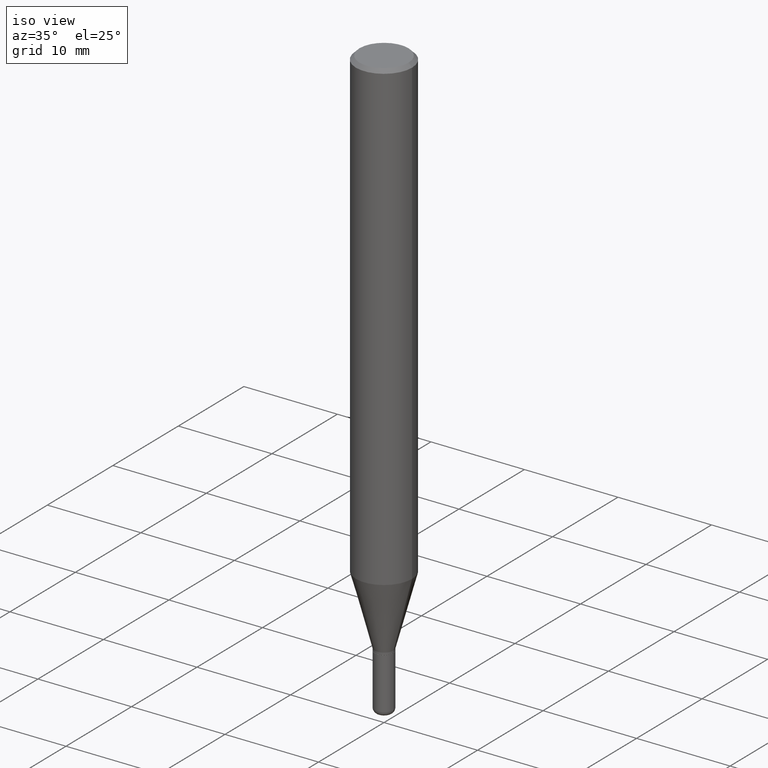
[diagram: clean part render]
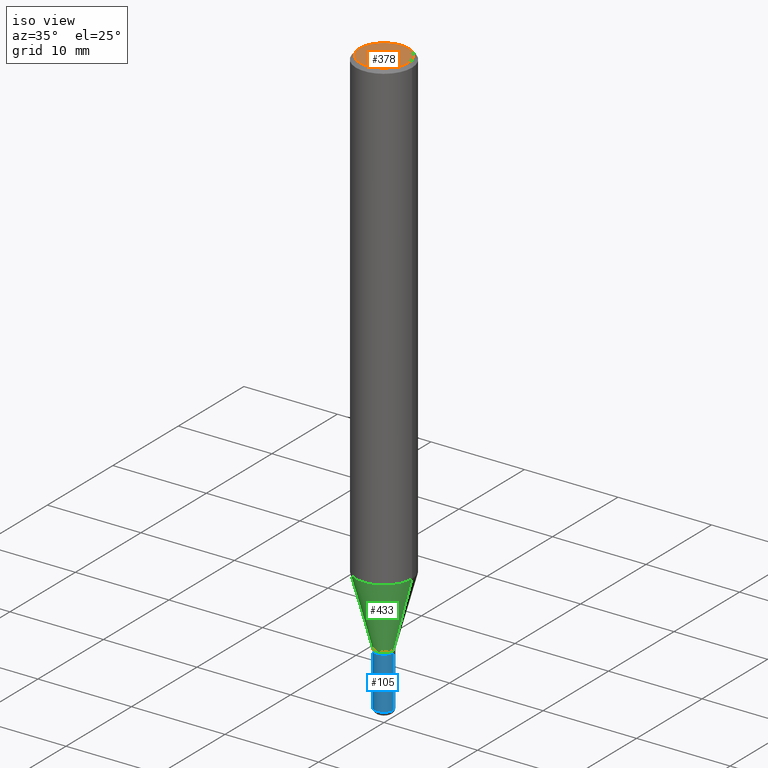
[diagram: same view with three faces highlighted in distinct colors, each labeled with its STEP entity id]
A machine part, iso view with three faces highlighted in distinct colors.
Their STEP definitions:

[orange] entity #378 — the highlighted planar face has unit normal (0, -0, -1).
#2 = CARTESIAN_POINT ( 'NONE',  ( 0.000000000000000000, 0.000000000000000000, 0.000000000000000000 ) ) ;
#14 = CARTESIAN_POINT ( 'NONE',  ( 7.199434520694541042E-16, 0.1031000000000000111, -3.599717260347282847E-16 ) ) ;
#33 = DIRECTION ( 'NONE',  ( 1.000000000000000000, -6.982962677686265922E-15, 4.876176775795935232E-29 ) ) ;
#43 = EDGE_LOOP ( 'NONE', ( #442, #156 ) ) ;
#44 = DIRECTION ( 'NONE',  ( -1.000000000000000000, 6.982962677686265922E-15, -4.876176775795935793E-29 ) ) ;
#99 = DIRECTION ( 'NONE',  ( 1.000000000000000000, -6.982962677686265922E-15, 4.876176775795935232E-29 ) ) ;
#104 = DIRECTION ( 'NONE',  ( -2.445468806185136597E-29, 3.491481338843145583E-15, 1.000000000000000000 ) ) ;
#132 = CARTESIAN_POINT ( 'NONE',  ( 0.1031000000000000111, -7.849571885948548761E-16, 5.261941714946591942E-30 ) ) ;
#140 = DIRECTION ( 'NONE',  ( 2.438088387897960049E-29, -3.491481338843145188E-15, -1.000000000000000000 ) ) ;
#141 = CIRCLE ( 'NONE', #317, 0.1031000000000000111 ) ;
#156 = ORIENTED_EDGE ( 'NONE', *, *, #267, .T. ) ;
#160 = DIRECTION ( 'NONE',  ( -2.445468806185136597E-29, 3.491481338843145583E-15, 1.000000000000000000 ) ) ;
#259 = CARTESIAN_POINT ( 'NONE',  ( -0.1031000000000000111, 7.461295621107775452E-16, -5.126375781645864005E-30 ) ) ;
#260 = VERTEX_POINT ( 'NONE', #259 ) ;
#267 = EDGE_CURVE ( 'NONE', #409, #260, #141, .T. ) ;
#285 = AXIS2_PLACEMENT_3D ( 'NONE', #2, #160, #33 ) ;
#296 = AXIS2_PLACEMENT_3D ( 'NONE', #14, #140, #44 ) ;
#317 = AXIS2_PLACEMENT_3D ( 'NONE', #493, #104, #99 ) ;
#378 = ADVANCED_FACE ( 'NONE', ( #404 ), #480, .F. ) ;
#381 = CIRCLE ( 'NONE', #285, 0.1031000000000000111 ) ;
#404 = FACE_OUTER_BOUND ( 'NONE', #43, .T. ) ;
#409 = VERTEX_POINT ( 'NONE', #132 ) ;
#442 = ORIENTED_EDGE ( 'NONE', *, *, #507, .T. ) ;
#480 = PLANE ( 'NONE',  #296 ) ;
#493 = CARTESIAN_POINT ( 'NONE',  ( 0.000000000000000000, 0.000000000000000000, 0.000000000000000000 ) ) ;
#507 = EDGE_CURVE ( 'NONE', #260, #409, #381, .T. ) ;

[blue] entity #105 — the highlighted cylindrical surface (edge-blend (fillet) strip) has radius 0.9995 mm, axis along (-0, 0, 1).
#4 = CYLINDRICAL_SURFACE ( 'NONE', #158, 0.03935000000000008630 ) ;
#10 = VERTEX_POINT ( 'NONE', #276 ) ;
#13 = ORIENTED_EDGE ( 'NONE', *, *, #187, .F. ) ;
#18 = VECTOR ( 'NONE', #469, 39.37007874015748143 ) ;
#25 = CARTESIAN_POINT ( 'NONE',  ( 5.536052283441912610E-29, -7.904015454873113525E-15, -2.263800000000000257 ) ) ;
#49 = VECTOR ( 'NONE', #57, 39.37007874015748143 ) ;
#57 = DIRECTION ( 'NONE',  ( -2.445468806185136877E-29, 3.491481338843145188E-15, 1.000000000000000000 ) ) ;
#64 = CARTESIAN_POINT ( 'NONE',  ( 0.03935000000000016956, -8.934700746099610252E-15, -2.480300000000000171 ) ) ;
#83 = EDGE_LOOP ( 'NONE', ( #13, #333, #327, #491 ) ) ;
#105 = ADVANCED_FACE ( 'NONE', ( #126 ), #4, .T. ) ;
#107 = AXIS2_PLACEMENT_3D ( 'NONE', #354, #161, #239 ) ;
#126 = FACE_OUTER_BOUND ( 'NONE', #83, .T. ) ;
#158 = AXIS2_PLACEMENT_3D ( 'NONE', #361, #288, #212 ) ;
#161 = DIRECTION ( 'NONE',  ( -2.445468806185136597E-29, 3.491481338843145583E-15, 1.000000000000000000 ) ) ;
#177 = EDGE_CURVE ( 'NONE', #268, #292, #347, .T. ) ;
#187 = EDGE_CURVE ( 'NONE', #268, #10, #283, .T. ) ;
#201 = CIRCLE ( 'NONE', #253, 0.03935000000000000303 ) ;
#212 = DIRECTION ( 'NONE',  ( 1.000000000000000000, -6.982962677686266711E-15, 4.876176775795935793E-29 ) ) ;
#226 = DIRECTION ( 'NONE',  ( -2.445468806185136597E-29, 3.491481338843145583E-15, 1.000000000000000000 ) ) ;
#239 = DIRECTION ( 'NONE',  ( 1.000000000000000000, -6.982962677686265133E-15, 0.000000000000000000 ) ) ;
#253 = AXIS2_PLACEMENT_3D ( 'NONE', #25, #226, #453 ) ;
#255 = EDGE_CURVE ( 'NONE', #292, #323, #303, .T. ) ;
#268 = VERTEX_POINT ( 'NONE', #336 ) ;
#276 = CARTESIAN_POINT ( 'NONE',  ( -0.03935000000000000303, -8.002369743281284246E-15, -2.263800000000000257 ) ) ;
#283 = LINE ( 'NONE', #318, #18 ) ;
#288 = DIRECTION ( 'NONE',  ( -2.445468806185136597E-29, 3.491481338843145583E-15, 1.000000000000000000 ) ) ;
#292 = VERTEX_POINT ( 'NONE', #64 ) ;
#302 = CARTESIAN_POINT ( 'NONE',  ( 0.03935000000000000303, -8.178795036240066864E-15, -2.263800000000000257 ) ) ;
#303 = LINE ( 'NONE', #458, #49 ) ;
#318 = CARTESIAN_POINT ( 'NONE',  ( -0.03935000000000008630, 2.795985665216000363E-16, -1.935600958015309846E-30 ) ) ;
#323 = VERTEX_POINT ( 'NONE', #302 ) ;
#326 = EDGE_CURVE ( 'NONE', #10, #323, #201, .T. ) ;
#327 = ORIENTED_EDGE ( 'NONE', *, *, #255, .T. ) ;
#333 = ORIENTED_EDGE ( 'NONE', *, *, #177, .T. ) ;
#336 = CARTESIAN_POINT ( 'NONE',  ( -0.03935000000000016956, -8.002369743281282668E-15, -2.480300000000000171 ) ) ;
#347 = CIRCLE ( 'NONE', #107, 0.03935000000000016956 ) ;
#354 = CARTESIAN_POINT ( 'NONE',  ( 6.065496279980994755E-29, -8.659921164732655335E-15, -2.480300000000000171 ) ) ;
#361 = CARTESIAN_POINT ( 'NONE',  ( 0.000000000000000000, 0.000000000000000000, 0.000000000000000000 ) ) ;
#453 = DIRECTION ( 'NONE',  ( 1.000000000000000000, -6.982962677686269077E-15, 0.000000000000000000 ) ) ;
#458 = CARTESIAN_POINT ( 'NONE',  ( 0.03935000000000008630, -2.747795813669552127E-16, 1.918775561275704927E-30 ) ) ;
#469 = DIRECTION ( 'NONE',  ( -2.445468806185136877E-29, 3.491481338843145188E-15, 1.000000000000000000 ) ) ;
#491 = ORIENTED_EDGE ( 'NONE', *, *, #326, .F. ) ;

[green] entity #433 — the highlighted conical surface has half-angle 15 deg.
#28 = AXIS2_PLACEMENT_3D ( 'NONE', #197, #353, #70 ) ;
#42 = CARTESIAN_POINT ( 'NONE',  ( 0.1180999999999999966, -7.667645655887934594E-15, -1.959900998903951086 ) ) ;
#48 = CARTESIAN_POINT ( 'NONE',  ( -0.03935000000000003773, -6.796654433841794913E-15, -2.253800000000000026 ) ) ;
#54 = DIRECTION ( 'NONE',  ( 1.000000000000000000, -6.982962677686263555E-15, 0.000000000000000000 ) ) ;
#61 = CARTESIAN_POINT ( 'NONE',  ( 5.511597595380061064E-29, -7.869100641484681875E-15, -2.253800000000000026 ) ) ;
#66 = EDGE_CURVE ( 'NONE', #209, #153, #348, .T. ) ;
#70 = DIRECTION ( 'NONE',  ( 1.000000000000000000, -6.982962677686265133E-15, 0.000000000000000000 ) ) ;
#75 = CARTESIAN_POINT ( 'NONE',  ( 0.03935000000000003773, -8.143880222851636792E-15, -2.253800000000000026 ) ) ;
#93 = ORIENTED_EDGE ( 'NONE', *, *, #340, .F. ) ;
#96 = CARTESIAN_POINT ( 'NONE',  ( 5.511597595380061064E-29, -7.869100641484681875E-15, -2.253800000000000026 ) ) ;
#114 = VECTOR ( 'NONE', #515, 39.37007874015748854 ) ;
#115 = AXIS2_PLACEMENT_3D ( 'NONE', #61, #222, #407 ) ;
#144 = VERTEX_POINT ( 'NONE', #48 ) ;
#153 = VERTEX_POINT ( 'NONE', #42 ) ;
#182 = DIRECTION ( 'NONE',  ( -0.2588190451025206840, 5.211531920934545520E-15, 0.9659258262890682012 ) ) ;
#183 = CIRCLE ( 'NONE', #28, 0.1180999999999999966 ) ;
#197 = CARTESIAN_POINT ( 'NONE',  ( 4.792876756030702270E-29, -6.842957763653185543E-15, -1.959900998903951086 ) ) ;
#209 = VERTEX_POINT ( 'NONE', #430 ) ;
#222 = DIRECTION ( 'NONE',  ( -2.445468806185136597E-29, 3.491481338843145583E-15, 1.000000000000000000 ) ) ;
#228 = ORIENTED_EDGE ( 'NONE', *, *, #270, .F. ) ;
#262 = CARTESIAN_POINT ( 'NONE',  ( -0.03935000000000003773, -7.589502074963082480E-15, -2.253800000000000026 ) ) ;
#270 = EDGE_CURVE ( 'NONE', #144, #351, #417, .T. ) ;
#294 = FACE_OUTER_BOUND ( 'NONE', #408, .T. ) ;
#340 = EDGE_CURVE ( 'NONE', #351, #153, #183, .T. ) ;
#348 = LINE ( 'NONE', #75, #114 ) ;
#351 = VERTEX_POINT ( 'NONE', #428 ) ;
#353 = DIRECTION ( 'NONE',  ( -2.445468806185136597E-29, 3.491481338843145583E-15, 1.000000000000000000 ) ) ;
#356 = AXIS2_PLACEMENT_3D ( 'NONE', #96, #445, #54 ) ;
#360 = ORIENTED_EDGE ( 'NONE', *, *, #66, .T. ) ;
#396 = ORIENTED_EDGE ( 'NONE', *, *, #405, .T. ) ;
#402 = VECTOR ( 'NONE', #182, 39.37007874015748854 ) ;
#405 = EDGE_CURVE ( 'NONE', #144, #209, #511, .T. ) ;
#407 = DIRECTION ( 'NONE',  ( 1.000000000000000000, -6.982962677686263555E-15, 0.000000000000000000 ) ) ;
#408 = EDGE_LOOP ( 'NONE', ( #228, #396, #360, #93 ) ) ;
#417 = LINE ( 'NONE', #262, #402 ) ;
#428 = CARTESIAN_POINT ( 'NONE',  ( -0.1180999999999999966, -6.003806792720507346E-15, -1.959900998903951086 ) ) ;
#430 = CARTESIAN_POINT ( 'NONE',  ( 0.03935000000000003773, -8.143880222851636792E-15, -2.253800000000000026 ) ) ;
#433 = ADVANCED_FACE ( 'NONE', ( #294 ), #468, .T. ) ;
#445 = DIRECTION ( 'NONE',  ( -2.445468806185136597E-29, 3.491481338843145583E-15, 1.000000000000000000 ) ) ;
#468 = CONICAL_SURFACE ( 'NONE', #356, 0.03935000000000003773, 0.2617993877991494078 ) ;
#511 = CIRCLE ( 'NONE', #115, 0.03935000000000003773 ) ;
#515 = DIRECTION ( 'NONE',  ( 0.2588190451025206840, 1.565188264969626504E-15, 0.9659258262890682012 ) ) ;